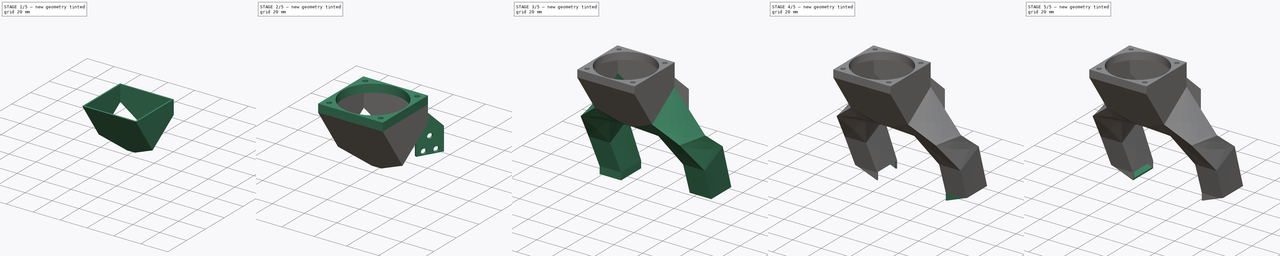
[diagram: build sequence overview — one tinted view per stage of 5, left to right]
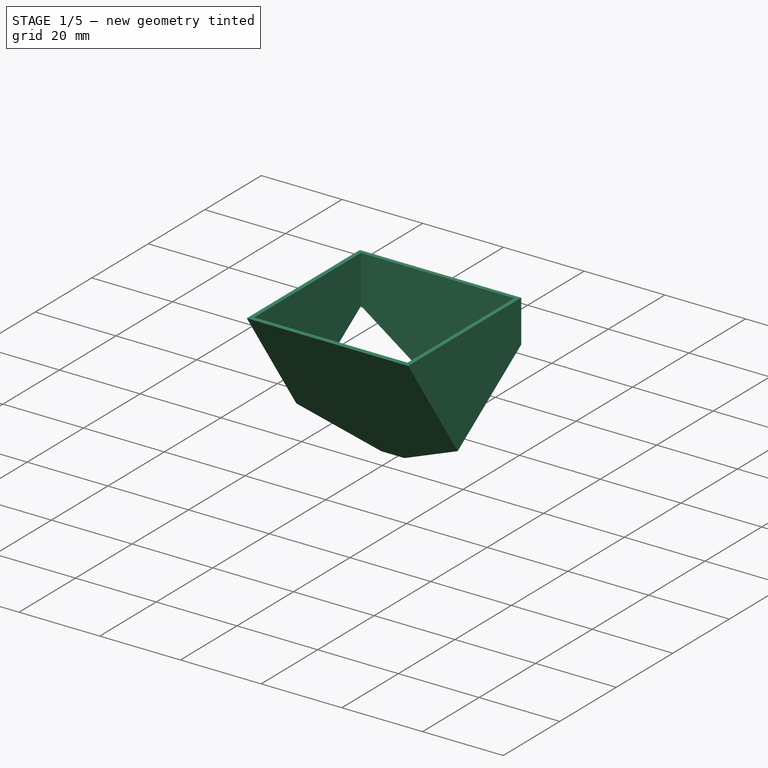
[diagram: stage 1 of 5 — iso view after this stage's code; geometry added in this stage tinted green]
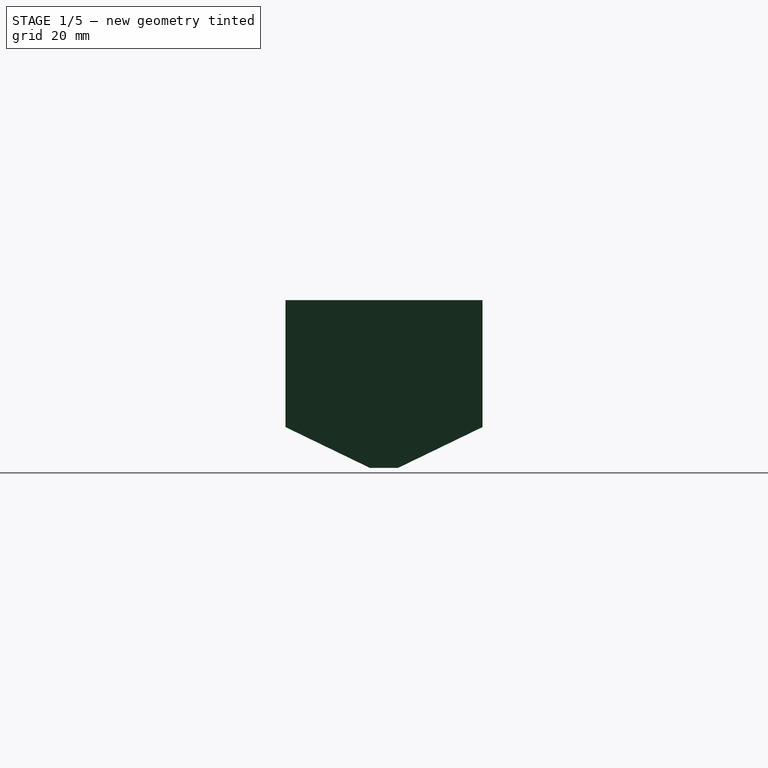
[diagram: stage 1 of 5 — front view after this stage's code; geometry added in this stage tinted green]
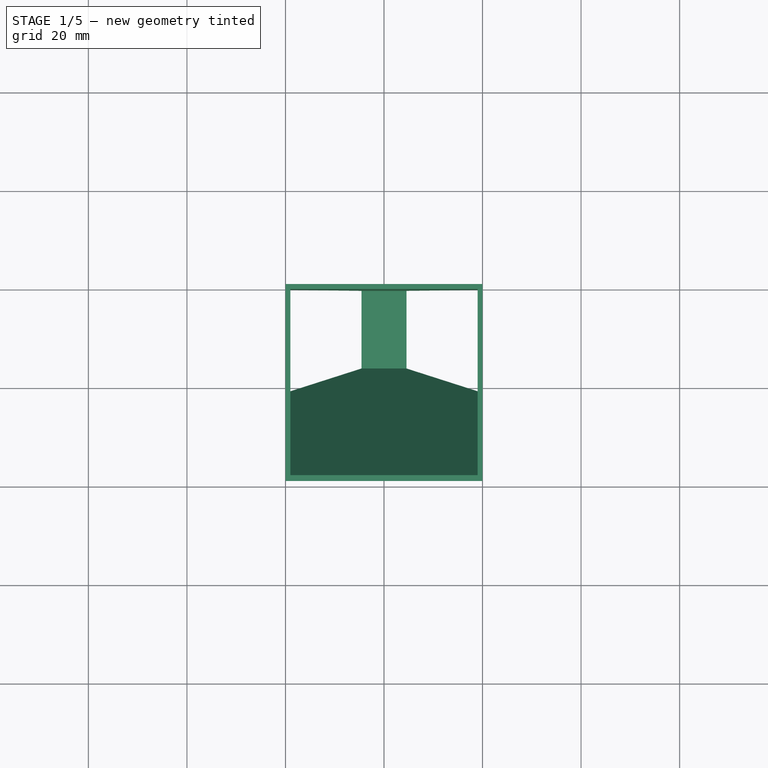
[diagram: stage 1 of 5 — top view after this stage's code; geometry added in this stage tinted green]
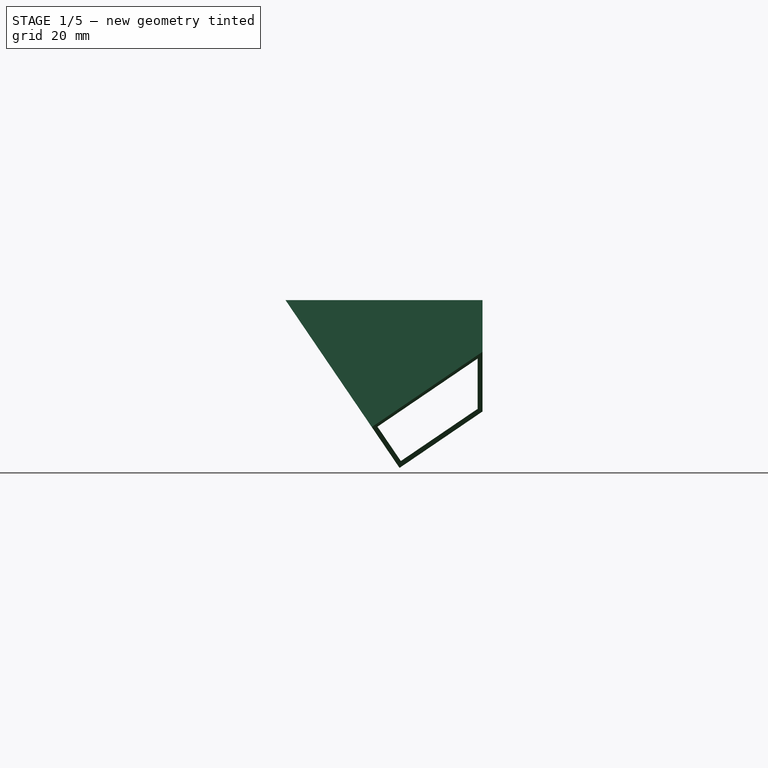
[diagram: stage 1 of 5 — right view after this stage's code; geometry added in this stage tinted green]
FCSTD DOCUMENT  (FreeCAD 0.19R)
Label: hotend-fan
License: All rights reserved
LicenseURL: http://en.wikipedia.org/wiki/All_rights_reserved
objects: Sketcher::SketchObject×21, PartDesign::ShapeBinder×9, PartDesign::Pad×7, PartDesign::Pocket×6, Part::Feature×4, PartDesign::Body×3, PartDesign::Plane×3, PartDesign::AdditiveLoft×3, Part::Thickness×1, PartDesign::FeatureBase×1, PartDesign::Mirrored×1
note: 75 computed .brp shape members not serialized (recipe doc carries the construction recipe); baked Part::Feature solids carry a one-line shape summary decoded from their .brp

FEATURE [Part::Feature] Body001  label="Carriage"
  Placement = pos=(5,40.65,64.65) rot=(0,0.707107,0.707107;3.14159rad)
  shape: bbox 54.15 x 20 x 85.15 mm, 245 faces (baked)
FEATURE [Part::Feature] Body003  label="Hotend001"
  Placement = pos=(0,0,74.4) rot=(0,0,1;0rad)
  shape: bbox 31.18 x 27 x 82.4 mm, 152 faces (baked)
FEATURE [Part::Feature] Body002001  label="Holder001"
  shape: bbox 52 x 36 x 48.65 mm, 41 faces (baked)
FEATURE [Part::Feature] Body004001  label="bltouch001"
  shape: bbox 11.53 x 26 x 42.4 mm, 31 faces (baked)
FEATURE [Sketcher::SketchObject] Sketch
  FullyConstrained = true
  MapMode = 5
  Placement = pos=(0,0,0) rot=(0.57735,0.57735,0.57735;2.0944rad)
  Support = -> [YZ_Plane]
  sketch-geometry (4):
    g0: LineSegment StartX=-19.3853 StartY=86.3403 StartZ=0 EndX=-59.3853 EndY=86.3403 EndZ=0
    g1: LineSegment StartX=-59.3853 StartY=86.3403 StartZ=0 EndX=-36.2307 EndY=52.2822 EndZ=0
    g2: LineSegment StartX=-36.2307 StartY=52.2822 StartZ=0 EndX=-19.3853 EndY=58.241 EndZ=0
    g3: LineSegment StartX=-19.3853 StartY=58.241 StartZ=0 EndX=-19.3853 EndY=86.3403 EndZ=0
  constraints (12):
    c: Coincident(g0,g1)
    c: Coincident(g1,g2)
    c: Coincident(g2,g3)
    c: Coincident(g3,g0)
    c: Vertical(g3)
    c: Distance(g0) = 40
    c: DistanceX(g1) = -36.2307
    c: DistanceY(g1) = 52.2822
    c: DistanceX(g2) = -19.3853
    c: DistanceY(g2) = 58.241
    c: Angle(g1) = -0.973719
    c: Horizontal(g0)
FEATURE [PartDesign::Pad] Pad
  Direction = (1,1,1)
  Length = 40
  Length2 = 100
  Midplane = true
  Placement = pos=(0,0,0) rot=(0.57735,0.57735,0.57735;2.0944rad)
  Profile = -> Sketch
  Type = 0
FEATURE [Sketcher::SketchObject] Sketch001
  ExternalGeometry = -> [Pad]
  FullyConstrained = false
  MapMode = 5
  Placement = pos=(-1e-16,-0.469442,-0.319152) rot=(0.662234,0.662234,-0.350561;2.46724rad)
  Support = -> [Pad]
  sketch-geometry (7):
    g0: LineSegment StartX=-59.0632 StartY=0 StartZ=0 EndX=-59.0632 EndY=20 EndZ=0
    g1: LineSegment StartX=-59.0632 StartY=20 StartZ=0 EndX=-73.6299 EndY=20 EndZ=0
    g2: LineSegment StartX=-59.0632 StartY=0 StartZ=0 EndX=-59.0632 EndY=-20 EndZ=0
    g3: LineSegment StartX=-59.0632 StartY=-20 StartZ=0 EndX=-73.6299 EndY=-20 EndZ=0
    g4: LineSegment StartX=-73.6299 StartY=20 StartZ=0 EndX=-63.6064 EndY=2.86043 EndZ=0
    g5: LineSegment StartX=-63.6064 StartY=2.86043 StartZ=0 EndX=-63.6064 EndY=-2.86043 EndZ=0
    g6: LineSegment StartX=-63.6064 StartY=-2.86043 StartZ=0 EndX=-73.6299 EndY=-20 EndZ=0
  constraints (15):
    c: Coincident(g0,g1)
    c: Coincident(g0,g-4)
    c: PointOnObject(g1,g-3)
    c: Coincident(g2,g-4)
    c: Vertical(g2)
    c: Coincident(g2,g3)
    c: Symmetric(g3,g1,g-1)
    c: Coincident(g1,g4)
    c: Coincident(g4,g5)
    c: Coincident(g5,g6)
    c: Coincident(g6,g3)
    c: PointOnObject(g4,g-6)
    c: Symmetric(g5,g4,g-1)
    c: Coincident(g0,g2)
    c: PointOnObject(g0,g-1)
FEATURE [PartDesign::Pocket] Pocket
  BaseFeature = -> Pad
  Length = 5
  Length2 = 100
  Placement = pos=(0,0,0) rot=(0.57735,0.57735,0.57735;2.0944rad)
  Profile = -> Sketch001
  Type = 1
FEATURE [PartDesign::Body] Body  label="main"
  Group = -> [Sketch,Pad,Sketch001,Pocket]
  Origin = -> Origin
  Tip = -> Pocket
FEATURE [Part::Thickness] Thickness001
  Faces = -> Pocket [Face1,Face8,Face6]
  Intersection = false
  Join = 0
  Mode = 0
  SelfIntersection = false
  Value = -1
FEATURE [PartDesign::FeatureBase] BaseFeature001
  BaseFeature = -> Thickness001
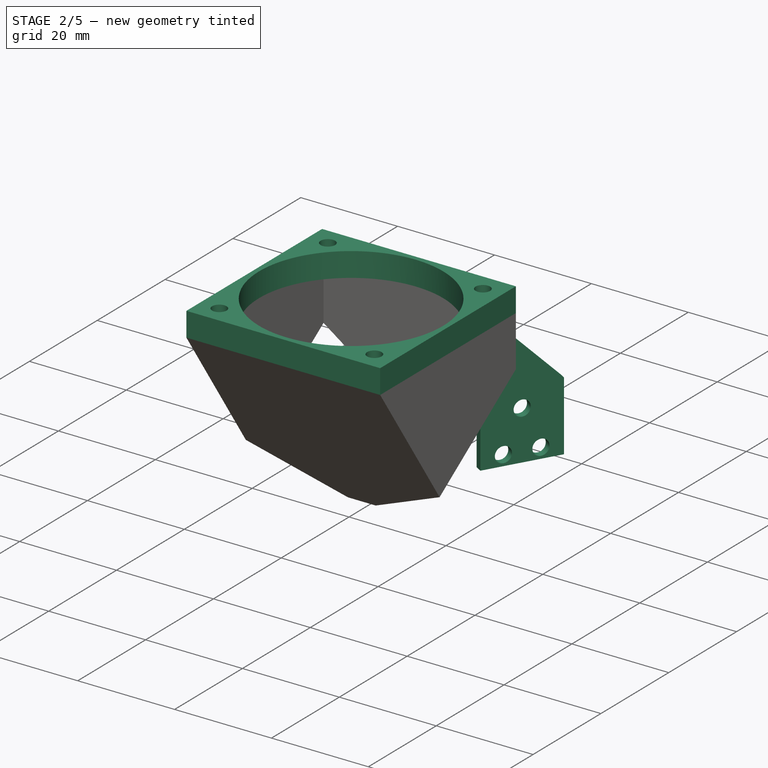
[diagram: stage 2 of 5 — iso view after this stage's code; geometry added in this stage tinted green]
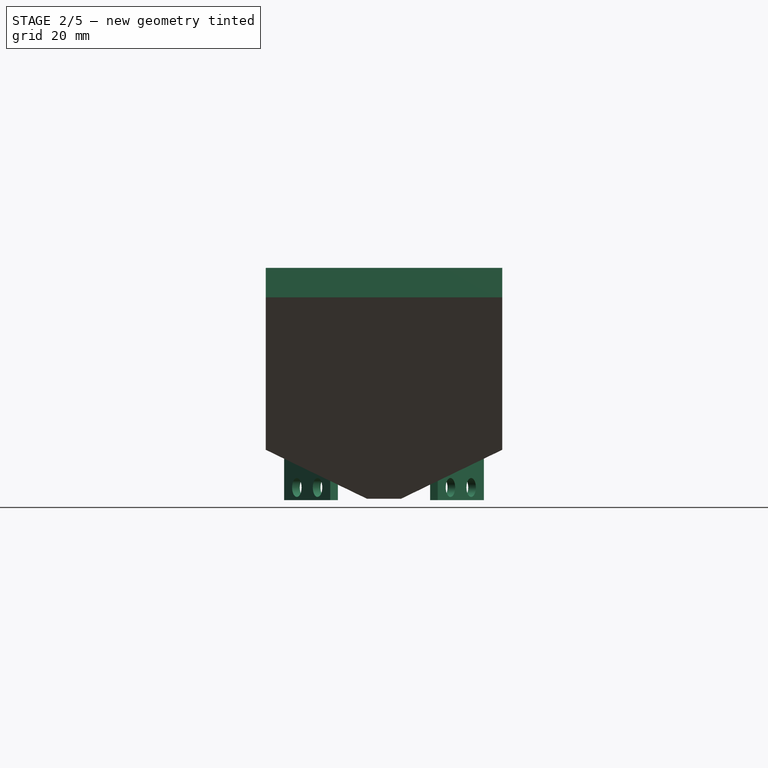
[diagram: stage 2 of 5 — front view after this stage's code; geometry added in this stage tinted green]
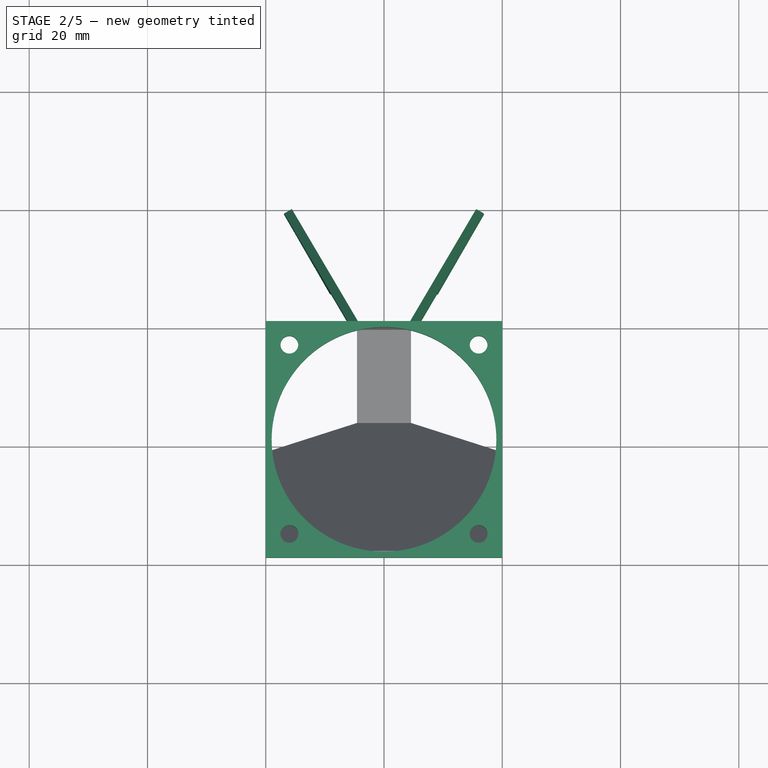
[diagram: stage 2 of 5 — top view after this stage's code; geometry added in this stage tinted green]
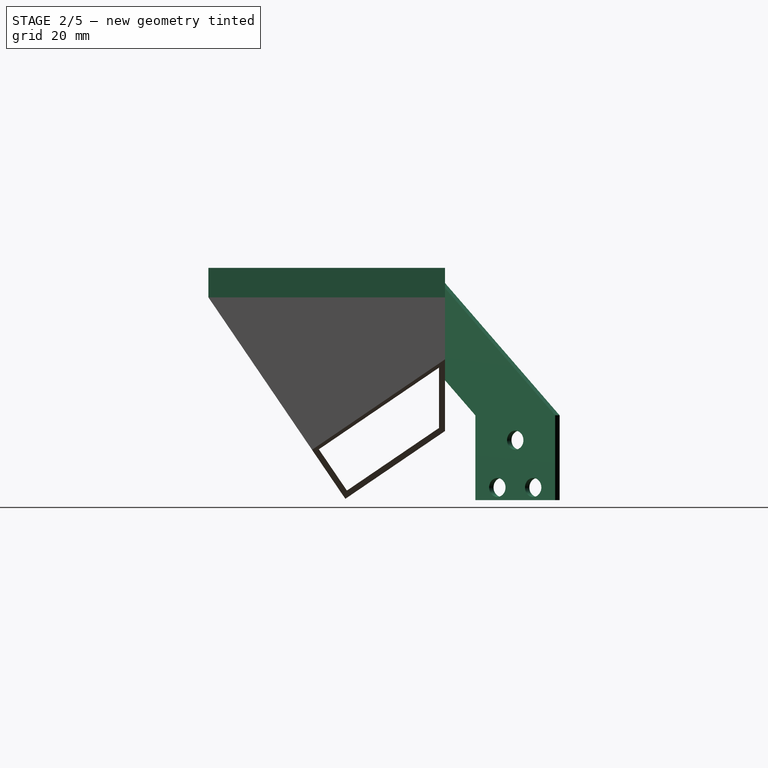
[diagram: stage 2 of 5 — right view after this stage's code; geometry added in this stage tinted green]
FEATURE [PartDesign::Body] Body004004  label="Splitter"
  Group = -> [ShapeBinder009,ShapeBinder010,Sketch034,Sketch036,AdditiveLoft002]
  Origin = -> Origin003
  Tip = -> AdditiveLoft002
FEATURE [PartDesign::Pad] Pad001
  BaseFeature = -> BaseFeature001
  Direction = (1,1,1)
  Length = 5
  Length2 = 100
  Profile = -> Sketch028
  Type = 0
FEATURE [Sketcher::SketchObject] Sketch029
  FullyConstrained = false
  MapMode = 5
  Placement = pos=(-3.25e-14,3.25e-14,91.3403) rot=(0,0,1;0rad)
  Support = -> [Pad001]
  sketch-geometry (9):
    g0: LineSegment StartX=-16 StartY=-23.3853 StartZ=0 EndX=16 EndY=-23.3853 EndZ=0
    g1: LineSegment StartX=16 StartY=-23.3853 StartZ=0 EndX=16 EndY=-55.3853 EndZ=0
    g2: LineSegment StartX=16 StartY=-55.3853 StartZ=0 EndX=-16 EndY=-55.3853 EndZ=0
    g3: LineSegment StartX=-16 StartY=-55.3853 StartZ=0 EndX=-16 EndY=-23.3853 EndZ=0
    g4: LineSegment StartX=6.9e-15 StartY=-39.3853 StartZ=0 EndX=16 EndY=-39.3853 EndZ=0
    g5: Circle CenterX=-16 CenterY=-23.3853 CenterZ=0 NormalX=0 NormalY=0 NormalZ=1 AngleXU=0 Radius=1.5
    g6: Circle CenterX=16 CenterY=-23.3853 CenterZ=0 NormalX=0 NormalY=0 NormalZ=1 AngleXU=0 Radius=1.5
    g7: Circle CenterX=-16 CenterY=-55.3853 CenterZ=0 NormalX=0 NormalY=0 NormalZ=1 AngleXU=0 Radius=1.5
    g8: Circle CenterX=16 CenterY=-55.3853 CenterZ=0 NormalX=0 NormalY=0 NormalZ=1 AngleXU=0 Radius=1.5
  constraints (20):
    c: Coincident(g0,g1)
    c: Coincident(g1,g2)
    c: Coincident(g2,g3)
    c: Coincident(g3,g0)
    c: Horizontal(g2)
    c: Vertical(g1)
    c: Vertical(g3)
    c: Symmetric(g0,g0,g-2)
    c: Equal(g1,g0)
    c: DistanceX(g0,g0) = 32
    c: PointOnObject(g4,g1)
    c: Symmetric(g0,g1,g4)
    c: Coincident(g5,g0)
    c: Coincident(g6,g0)
    c: Coincident(g7,g2)
    c: Coincident(g8,g1)
    c: Radius(g5) = 1.5
    c: Equal(g5,g6)
    c: Equal(g5,g7)
    c: Equal(g5,g8)
FEATURE [PartDesign::Pocket] Pocket001
  BaseFeature = -> Pad001
  Length = 5
  Length2 = 100
  Profile = -> Sketch029
  Type = 0
FEATURE [PartDesign::Pad] Pad002
  BaseFeature = -> Pocket001
  Direction = (1,1,1)
  Length = 1.5
  Length2 = 100
  Profile = -> Sketch026
  Type = 0
FEATURE [PartDesign::Pad] Pad003
  BaseFeature = -> Pad002
  Direction = (1,1,1)
  Length = 1.5
  Length2 = 100
  Profile = -> Sketch027
  Type = 0
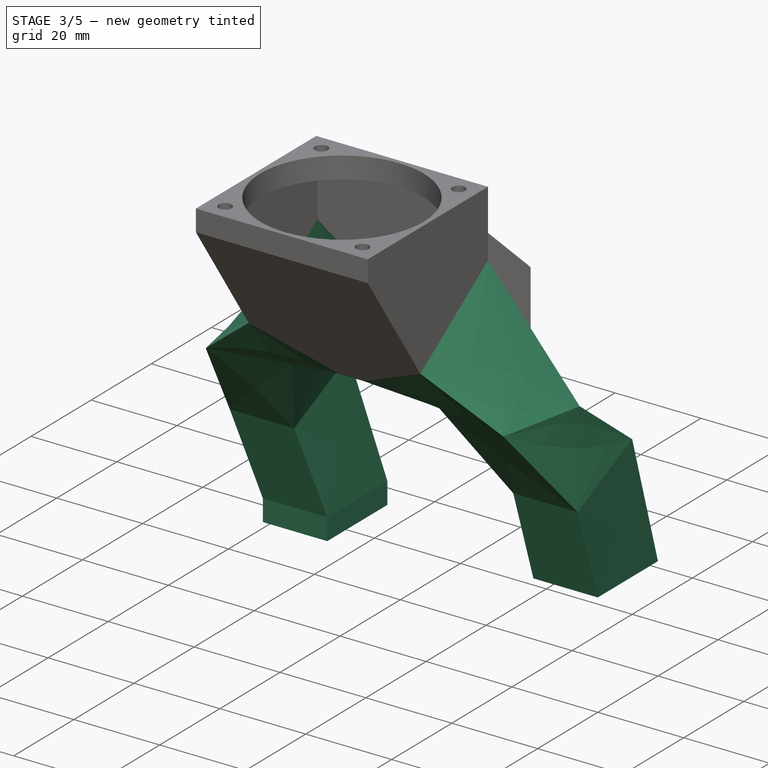
[diagram: stage 3 of 5 — iso view after this stage's code; geometry added in this stage tinted green]
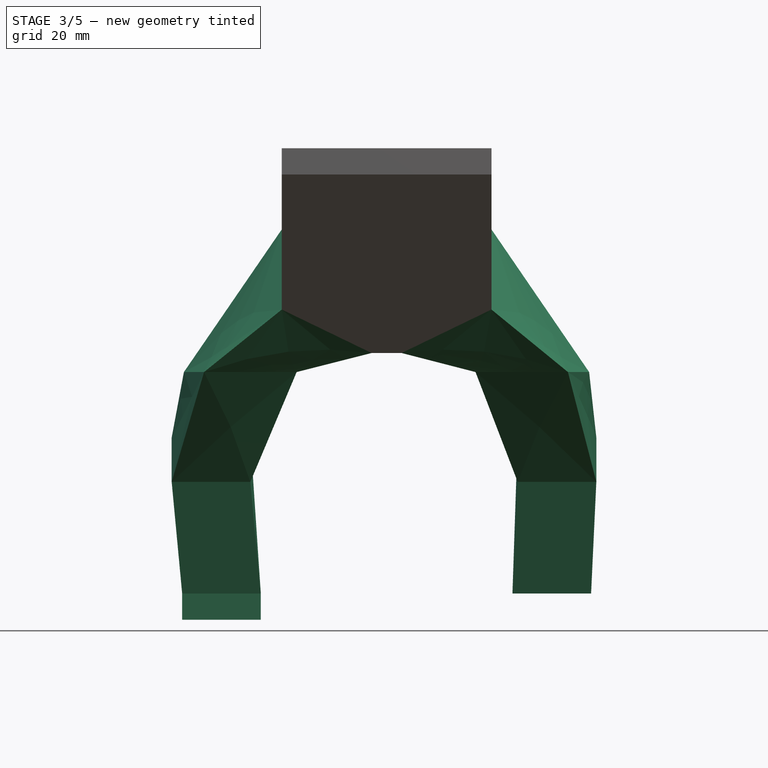
[diagram: stage 3 of 5 — front view after this stage's code; geometry added in this stage tinted green]
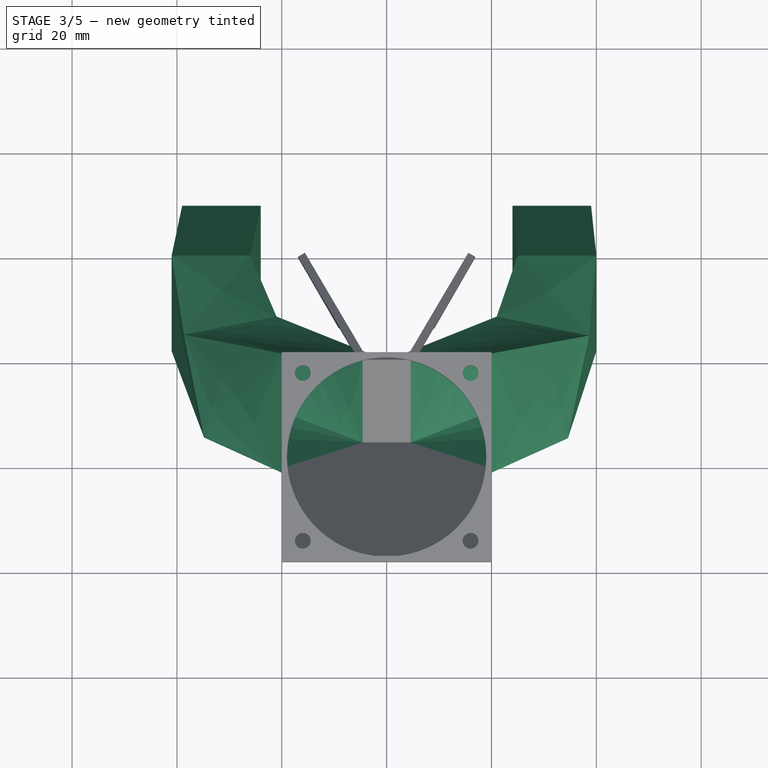
[diagram: stage 3 of 5 — top view after this stage's code; geometry added in this stage tinted green]
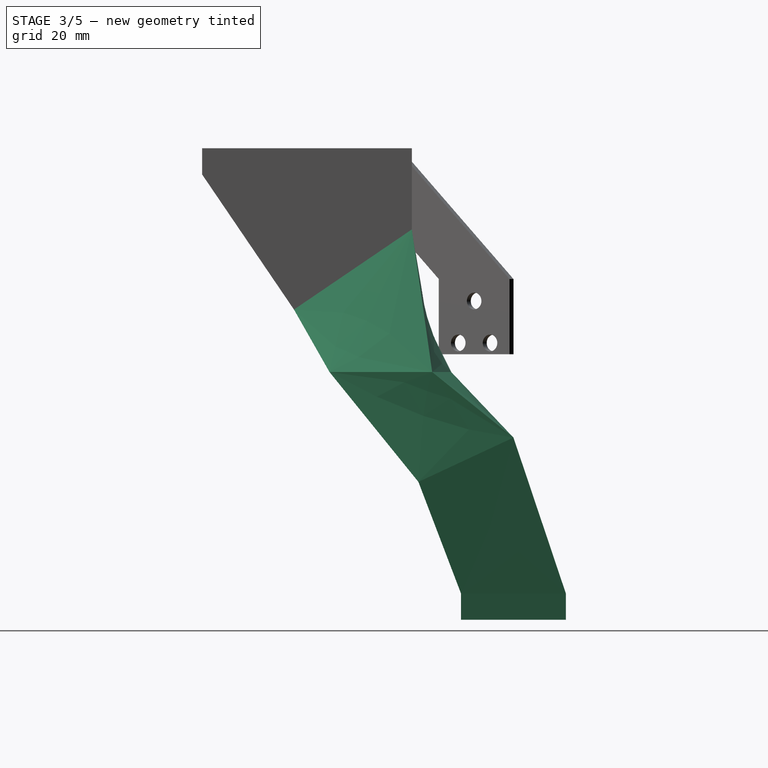
[diagram: stage 3 of 5 — right view after this stage's code; geometry added in this stage tinted green]
FEATURE [Sketcher::SketchObject] Sketch023
  ExternalGeometry = -> [Pad003]
  FullyConstrained = true
  MapMode = 5
  Placement = pos=(26.9892,-25.9467,38.165) rot=(0.962089,0.080218,-0.260672;3.71729rad)
  Support = -> [Pad003]
  sketch-geometry (8):
    g0: LineSegment StartX=-54.4348 StartY=0.567656 StartZ=0 EndX=-34.5794 EndY=0.567656 EndZ=0
    g1: LineSegment StartX=-34.5794 StartY=0.567656 StartZ=0 EndX=-34.5794 EndY=-19.8021 EndZ=0
    g2: LineSegment StartX=-34.5794 StartY=-19.8021 StartZ=0 EndX=-54.4348 EndY=-26.6167 EndZ=0
    g3: LineSegment StartX=-54.4348 StartY=-26.6167 StartZ=0 EndX=-54.4348 EndY=0.567656 EndZ=0
    g4: LineSegment StartX=-53.2763 StartY=-0.432344 StartZ=0 EndX=-36.5603 EndY=-0.432344 EndZ=0
    g5: LineSegment StartX=-36.5603 StartY=-0.432344 StartZ=0 EndX=-36.5603 EndY=-19.2728 EndZ=0
    g6: LineSegment StartX=-36.5603 StartY=-19.2728 StartZ=0 EndX=-53.2763 EndY=-25.0099 EndZ=0
    g7: LineSegment StartX=-53.2763 StartY=-25.0099 StartZ=0 EndX=-53.2763 EndY=-0.432344 EndZ=0
  constraints (16):
    c: Coincident(g0,g1)
    c: Coincident(g1,g2)
    c: Coincident(g2,g3)
    c: Coincident(g3,g0)
    c: Coincident(g4,g5)
    c: Coincident(g5,g6)
    c: Coincident(g6,g7)
    c: Coincident(g7,g4)
    c: Coincident(g0,g-4)
    c: Coincident(g4,g-3)
    c: Coincident(g4,g-3)
    c: Coincident(g0,g-4)
    c: Coincident(g1,g-6)
    c: Coincident(g5,g-5)
    c: Coincident(g-5,g6)
    c: Coincident(g2,g-6)
FEATURE [PartDesign::AdditiveLoft] AdditiveLoft
  BaseFeature = -> Pad003
  Closed = false
  Profile = -> Sketch023
  Ruled = true
  Sections = -> [Sketch018,Sketch021,Sketch019]
FEATURE [PartDesign::AdditiveLoft] AdditiveLoft003
  BaseFeature = -> AdditiveLoft
  Closed = false
  Profile = -> Sketch022
  Ruled = true
  Sections = -> [Sketch020,Sketch016,Sketch017]
FEATURE [PartDesign::ShapeBinder] ShapeBinder011
  Support = -> [AdditiveLoft003]
  TraceSupport = false
FEATURE [PartDesign::Pad] Pad004
  BaseFeature = -> AdditiveLoft003
  Direction = (1,1,1)
  Length = 5
  Length2 = 100
  Profile = -> ShapeBinder011
  Type = 0
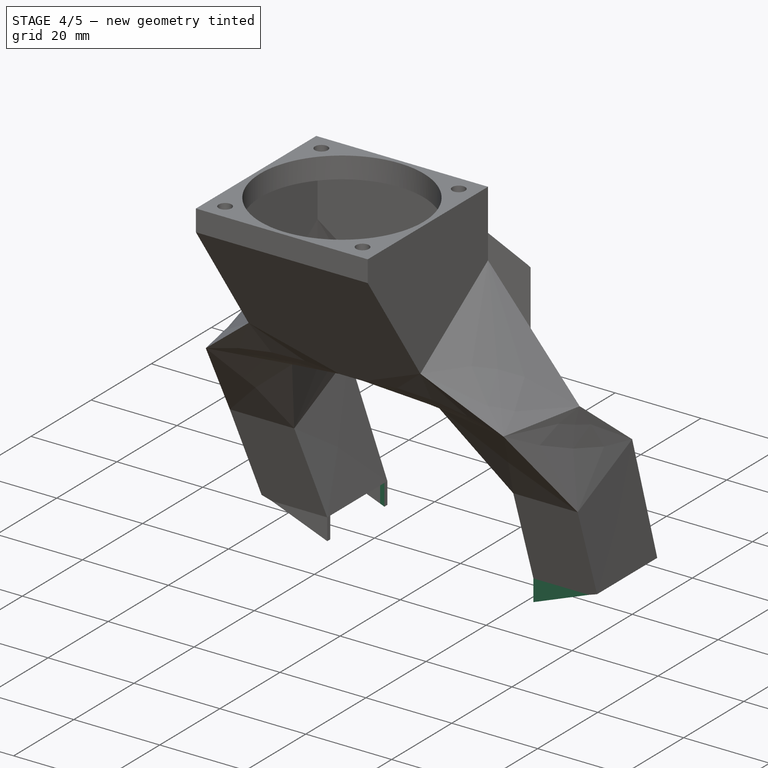
[diagram: stage 4 of 5 — iso view after this stage's code; geometry added in this stage tinted green]
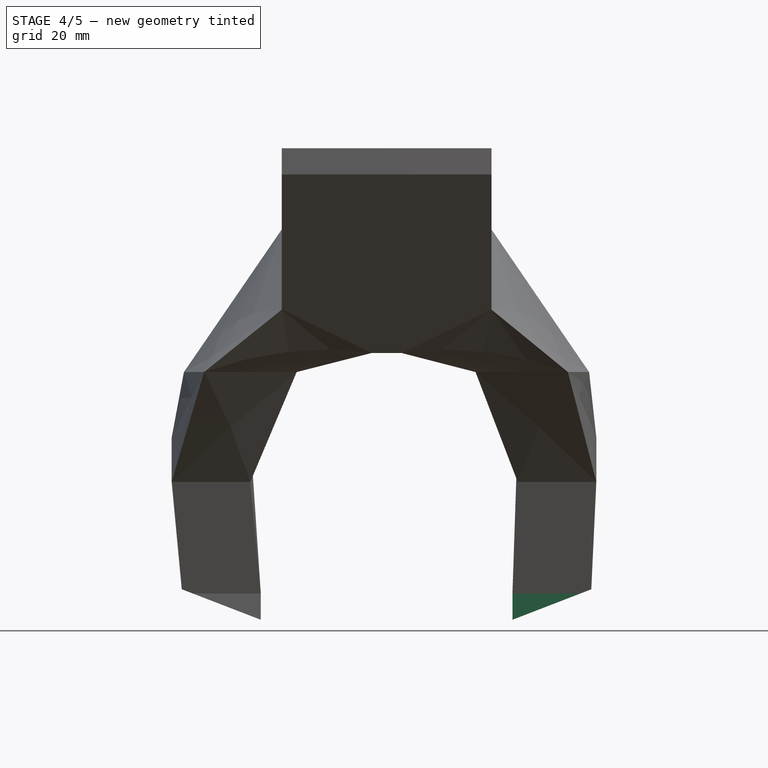
[diagram: stage 4 of 5 — front view after this stage's code; geometry added in this stage tinted green]
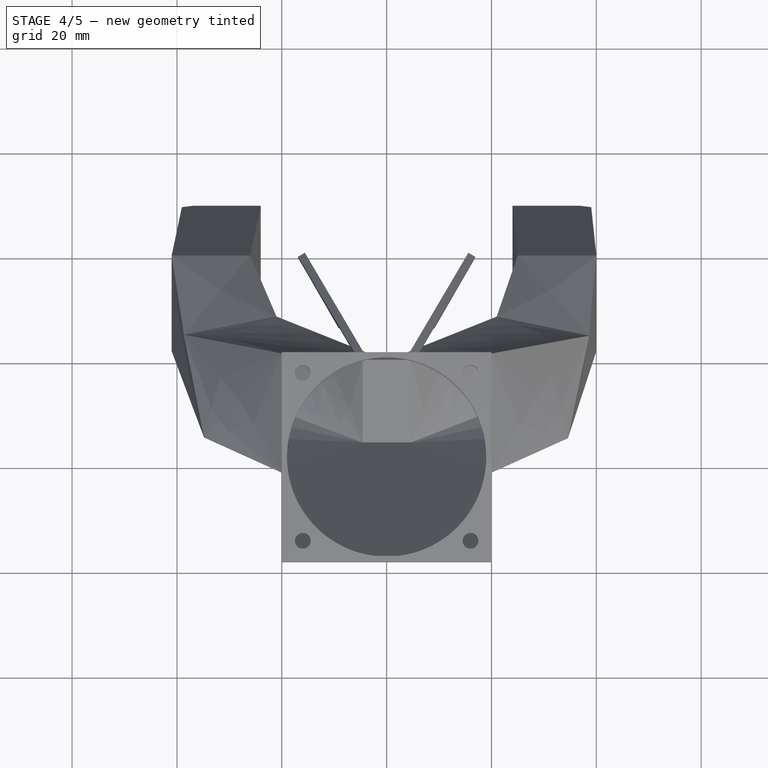
[diagram: stage 4 of 5 — top view after this stage's code; geometry added in this stage tinted green]
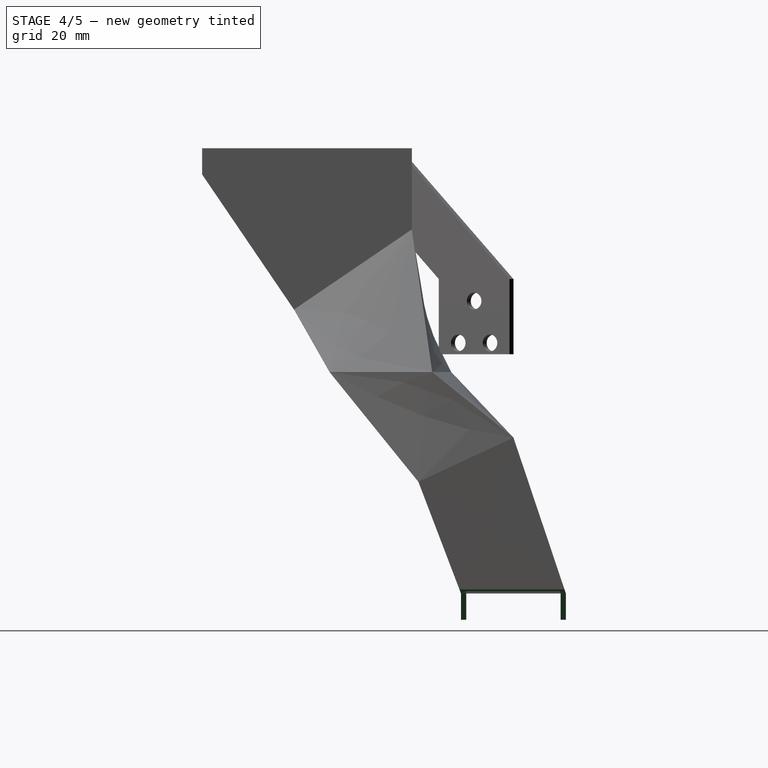
[diagram: stage 4 of 5 — right view after this stage's code; geometry added in this stage tinted green]
FEATURE [PartDesign::ShapeBinder] ShapeBinder012
  Support = -> [Pad004]
  TraceSupport = false
FEATURE [PartDesign::Pad] Pad005
  BaseFeature = -> Pad004
  Direction = (1,1,1)
  Length = 5
  Length2 = 100
  Profile = -> ShapeBinder012
  Type = 0
FEATURE [Sketcher::SketchObject] Sketch037
  ExternalGeometry = -> [Pad005]
  FullyConstrained = true
  MapMode = 5
  Placement = pos=(-25,0,0) rot=(0.57735,-0.57735,-0.57735;2.0944rad)
  Support = -> [Pad005]
  sketch-geometry (4):
    g0: LineSegment StartX=-9 StartY=6.4 StartZ=0 EndX=9 EndY=6.4 EndZ=0
    g1: LineSegment StartX=9 StartY=6.4 StartZ=0 EndX=9 EndY=1.4 EndZ=0
    g2: LineSegment StartX=9 StartY=1.4 StartZ=0 EndX=-9 EndY=1.4 EndZ=0
    g3: LineSegment StartX=-9 StartY=1.4 StartZ=0 EndX=-9 EndY=6.4 EndZ=0
  constraints (10):
    c: Coincident(g0,g1)
    c: Coincident(g1,g2)
    c: Coincident(g2,g3)
    c: Coincident(g3,g0)
    c: Horizontal(g0)
    c: Horizontal(g2)
    c: Vertical(g1)
    c: Vertical(g3)
    c: Coincident(g0,g-3)
    c: Coincident(g1,g-4)
FEATURE [PartDesign::Pocket] Pocket002
  BaseFeature = -> Pad005
  Length = 5
  Length2 = 100
  Profile = -> Sketch037
  Type = 0
FEATURE [Sketcher::SketchObject] Sketch038
  ExternalGeometry = -> [Pocket002]
  FullyConstrained = true
  MapMode = 5
  Placement = pos=(25,0,0) rot=(0.57735,0.57735,0.57735;2.0944rad)
  Support = -> [Pocket002]
  sketch-geometry (4):
    g0: LineSegment StartX=-9 StartY=6.4 StartZ=0 EndX=9 EndY=6.4 EndZ=0
    g1: LineSegment StartX=9 StartY=6.4 StartZ=0 EndX=9 EndY=1.4 EndZ=0
    g2: LineSegment StartX=9 StartY=1.4 StartZ=0 EndX=-9 EndY=1.4 EndZ=0
    g3: LineSegment StartX=-9 StartY=1.4 StartZ=0 EndX=-9 EndY=6.4 EndZ=0
  constraints (10):
    c: Coincident(g0,g1)
    c: Coincident(g1,g2)
    c: Coincident(g2,g3)
    c: Coincident(g3,g0)
    c: Horizontal(g0)
    c: Horizontal(g2)
    c: Vertical(g1)
    c: Vertical(g3)
    c: Coincident(g0,g-3)
    c: Coincident(g1,g-4)
FEATURE [PartDesign::Pocket] Pocket003
  BaseFeature = -> Pocket002
  Length = 5
  Length2 = 100
  Profile = -> Sketch038
  Type = 0
FEATURE [Sketcher::SketchObject] Sketch030
  ExternalGeometry = -> [Pad005]
  FullyConstrained = false
  MapMode = 5
  Placement = pos=(0,-10,0) rot=(1,0,0;1.5708rad)
  Support = -> [Pocket003]
  sketch-geometry (6):
    g0: LineSegment StartX=24 StartY=1.4 StartZ=0 EndX=42.0309 EndY=8.36299 EndZ=0
    g1: LineSegment StartX=42.0309 StartY=8.36299 StartZ=0 EndX=42.0309 EndY=1.4 EndZ=0
    g2: LineSegment StartX=42.0309 StartY=1.4 StartZ=0 EndX=24 EndY=1.4 EndZ=0
    g3: LineSegment StartX=-24 StartY=1.4 StartZ=0 EndX=-42.0309 EndY=8.36299 EndZ=0
    g4: LineSegment StartX=-42.0309 StartY=8.36299 StartZ=0 EndX=-42.0309 EndY=1.4 EndZ=0
    g5: LineSegment StartX=-42.0309 StartY=1.4 StartZ=0 EndX=-24 EndY=1.4 EndZ=0
  constraints (14):
    c: Coincident(g0,g1)
    c: Coincident(g1,g2)
    c: Coincident(g2,g0)
    c: Vertical(g1)
    c: Coincident(g3,g4)
    c: Coincident(g4,g5)
    c: Coincident(g5,g3)
    c: Vertical(g4)
    c: Equal(g1,g4)
    c: Horizontal(g2)
    c: Horizontal(g5)
    c: Equal(g5,g2)
    c: Symmetric(g3,g0,g-2)
    c: Coincident(g0,g-5)
FEATURE [PartDesign::Pocket] Pocket004
  BaseFeature = -> Pocket003
  Length = 20
  Length2 = 20
  Profile = -> Sketch030
  Type = 4
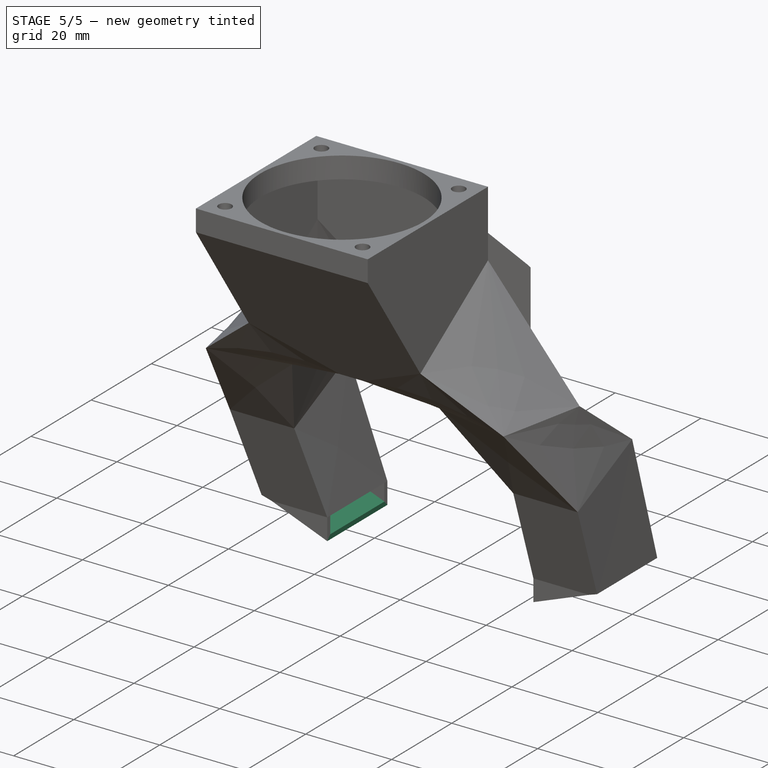
[diagram: stage 5 of 5 — iso view after this stage's code; geometry added in this stage tinted green]
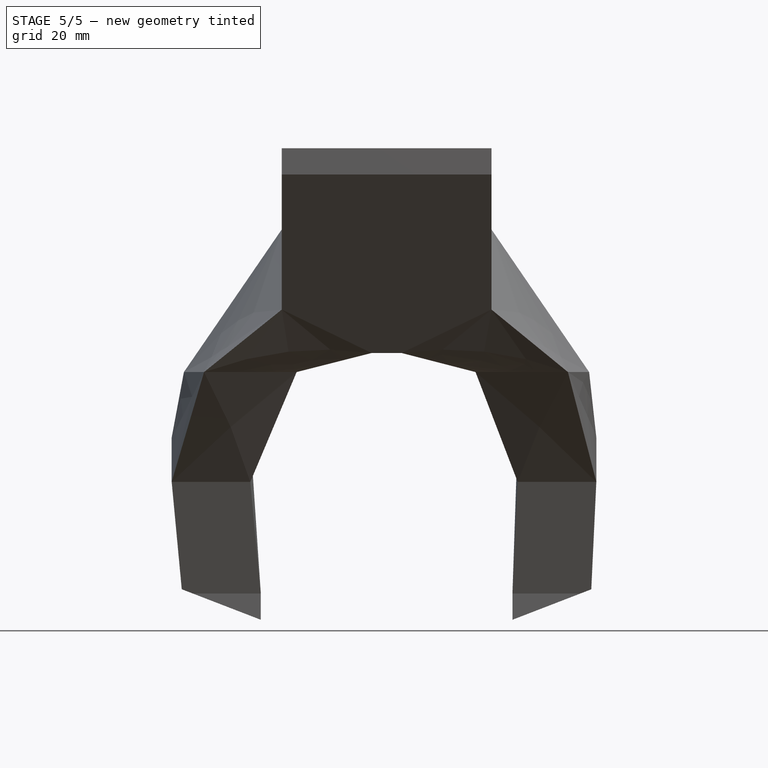
[diagram: stage 5 of 5 — front view after this stage's code; geometry added in this stage tinted green]
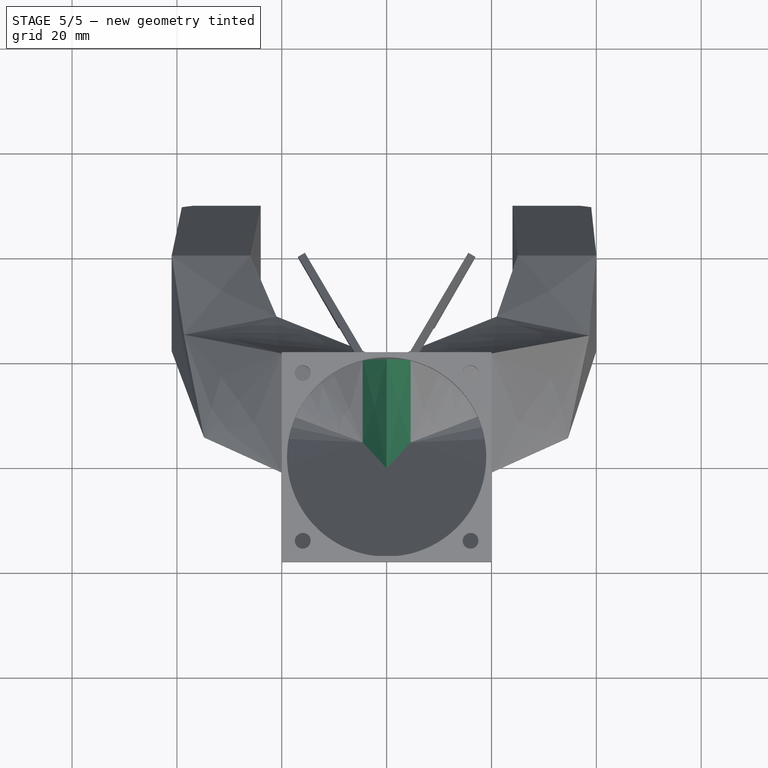
[diagram: stage 5 of 5 — top view after this stage's code; geometry added in this stage tinted green]
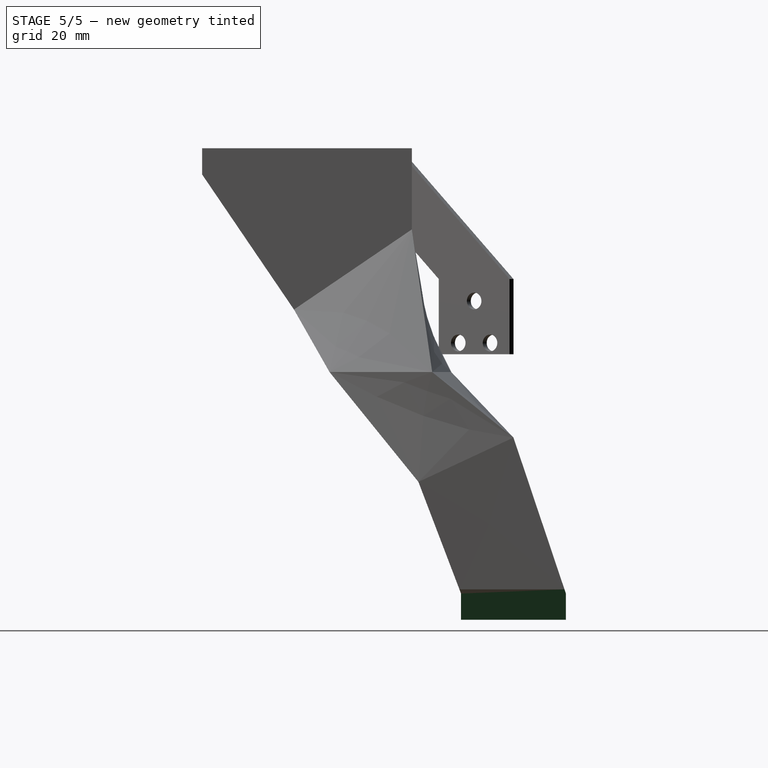
[diagram: stage 5 of 5 — right view after this stage's code; geometry added in this stage tinted green]
FEATURE [PartDesign::ShapeBinder] CopyBody003003
  Placement = pos=(0,0,74.4) rot=(0,0,1;0rad)
  TraceSupport = false
FEATURE [PartDesign::ShapeBinder] CopyBody003004
  Placement = pos=(0,0,74.4) rot=(0,0,1;0rad)
  TraceSupport = false
FEATURE [PartDesign::Plane] DatumPlane003
  Length = 284.982
  MapMode = 5
  Placement = pos=(0,0,6.4) rot=(1,0,0;3.14159rad)
  ResizeMode = 0
  Support = -> [CopyBody003003]
  Width = 284.982
FEATURE [Sketcher::SketchObject] Sketch017
  FullyConstrained = true
  MapMode = 5
  Placement = pos=(0,0,6.4) rot=(1,0,0;3.14159rad)
  Support = -> [DatumPlane003]
  sketch-geometry (10):
    g0: LineSegment StartX=24 StartY=10 StartZ=0 EndX=39 EndY=10 EndZ=0
    g1: LineSegment StartX=39 StartY=10 StartZ=0 EndX=39 EndY=-10 EndZ=0
    g2: LineSegment StartX=39 StartY=-10 StartZ=0 EndX=24 EndY=-10 EndZ=0
    g3: LineSegment StartX=24 StartY=-10 StartZ=0 EndX=24 EndY=10 EndZ=0
    g4: LineSegment StartX=25 StartY=9 StartZ=0 EndX=38 EndY=9 EndZ=0
    g5: LineSegment StartX=38 StartY=9 StartZ=0 EndX=38 EndY=-9 EndZ=0
    g6: LineSegment StartX=38 StartY=-9 StartZ=0 EndX=25 EndY=-9 EndZ=0
    g7: LineSegment StartX=25 StartY=-9 StartZ=0 EndX=25 EndY=9 EndZ=0
    g8: LineSegment StartX=39 StartY=10 StartZ=0 EndX=38 EndY=9 EndZ=0
    g9: LineSegment StartX=25 StartY=-9 StartZ=0 EndX=24 EndY=-10 EndZ=0
  constraints (27):
    c: Coincident(g0,g1)
    c: Coincident(g1,g2)
    c: Coincident(g2,g3)
    c: Coincident(g3,g0)
    c: Horizontal(g0)
    c: Horizontal(g2)
    c: Vertical(g3)
    c: DistanceX(g2,g2) = 15
    c: DistanceY(g3,g3) = 20
    c: Symmetric(g0,g1,g-1)
    c: Coincident(g4,g5)
    c: Coincident(g5,g6)
    c: Coincident(g6,g7)
    c: Coincident(g7,g4)
    c: Horizontal(g4)
    c: Horizontal(g6)
    c: Vertical(g5)
    c: Vertical(g7)
    c: Distance(g4,g0) = 1
    c: Distance(g4,g1) = 1
    c: Coincident(g8,g0)
    c: Coincident(g8,g4)
    c: Coincident(g9,g6)
    c: Coincident(g9,g2)
    c: Equal(g9,g8)
    c: Parallel(g9,g8)
    c: DistanceX(g0) = 24
FEATURE [PartDesign::ShapeBinder] CopyBody003005
  Placement = pos=(0,0,74.4) rot=(0,0,1;0rad)
  TraceSupport = false
FEATURE [PartDesign::Plane] DatumPlane004
  Length = 284.982
  MapMode = 5
  Placement = pos=(0,0,48.65) rot=(0,0,1;0rad)
  ResizeMode = 0
  Support = -> [CopyBody003005]
  Width = 284.982
FEATURE [Sketcher::SketchObject] Sketch018
  FullyConstrained = false
  MapMode = 5
  Placement = pos=(0,0,48.65) rot=(0,0,1;0rad)
  Support = -> [DatumPlane004]
  sketch-geometry (10):
    g0: LineSegment StartX=-38.6652 StartY=-15.3166 StartZ=0 EndX=-21 EndY=-11.8608 EndZ=0
    g1: LineSegment StartX=-21 StartY=-11.8608 StartZ=0 EndX=-17.1603 EndY=-31.4888 EndZ=0
    g2: LineSegment StartX=-17.1603 StartY=-31.4888 StartZ=0 EndX=-34.8255 EndY=-34.9445 EndZ=0
    g3: LineSegment StartX=-34.8255 StartY=-34.9445 StartZ=0 EndX=-38.6652 EndY=-15.3166 EndZ=0
    g4: LineSegment StartX=-37.4918 StartY=-16.106 StartZ=0 EndX=-21.7894 EndY=-13.0342 EndZ=0
    g5: LineSegment StartX=-21.7894 StartY=-13.0342 StartZ=0 EndX=-18.3337 EndY=-30.6994 EndZ=0
    g6: LineSegment StartX=-18.3337 StartY=-30.6994 StartZ=0 EndX=-34.036 EndY=-33.7711 EndZ=0
    g7: LineSegment StartX=-34.036 StartY=-33.7711 StartZ=0 EndX=-37.4918 EndY=-16.106 EndZ=0
    g8: LineSegment StartX=-21 StartY=-11.8608 StartZ=0 EndX=-21.7894 EndY=-13.0342 EndZ=0
    g9: LineSegment StartX=-34.8255 StartY=-34.9445 StartZ=0 EndX=-34.036 EndY=-33.7711 EndZ=0
  constraints (26):
    c: Coincident(g0,g1)
    c: Coincident(g1,g2)
    c: Coincident(g2,g3)
    c: Coincident(g3,g0)
    c: Coincident(g4,g5)
    c: Coincident(g5,g6)
    c: Coincident(g6,g7)
    c: Coincident(g7,g4)
    c: Distance(g4,g1) = 1
    c: Distance(g4,g0) = 1
    c: Coincident(g8,g0)
    c: Coincident(g8,g4)
    c: Coincident(g9,g2)
    c: Coincident(g9,g6)
    c: Equal(g9,g8)
    c: Parallel(g8,g9)
    c: DistanceX(g0) = -21
    c: Parallel(g4,g6)
    c: Parallel(g6,g0)
    c: Parallel(g0,g2)
    c: Parallel(g3,g7)
    c: Parallel(g7,g5)
    c: Parallel(g5,g1)
    c: Distance(g3) = 20
    c: Distance(g0) = 18
    c: Perpendicular(g6,g7)
FEATURE [Sketcher::SketchObject] Sketch019
  FullyConstrained = true
  MapMode = 5
  Placement = pos=(0,0,6.4) rot=(1,0,0;3.14159rad)
  Support = -> [DatumPlane003]
  sketch-geometry (10):
    g0: LineSegment StartX=-39 StartY=10 StartZ=0 EndX=-24 EndY=10 EndZ=0
    g1: LineSegment StartX=-24 StartY=10 StartZ=0 EndX=-24 EndY=-10 EndZ=0
    g2: LineSegment StartX=-24 StartY=-10 StartZ=0 EndX=-39 EndY=-10 EndZ=0
    g3: LineSegment StartX=-39 StartY=-10 StartZ=0 EndX=-39 EndY=10 EndZ=0
    g4: LineSegment StartX=-38 StartY=9 StartZ=0 EndX=-25 EndY=9 EndZ=0
    g5: LineSegment StartX=-25 StartY=9 StartZ=0 EndX=-25 EndY=-9 EndZ=0
    g6: LineSegment StartX=-25 StartY=-9 StartZ=0 EndX=-38 EndY=-9 EndZ=0
    g7: LineSegment StartX=-38 StartY=-9 StartZ=0 EndX=-38 EndY=9 EndZ=0
    g8: LineSegment StartX=-25 StartY=9 StartZ=0 EndX=-24 EndY=10 EndZ=0
    g9: LineSegment StartX=-39 StartY=-10 StartZ=0 EndX=-38 EndY=-9 EndZ=0
  constraints (27):
    c: Coincident(g0,g1)
    c: Coincident(g1,g2)
    c: Coincident(g2,g3)
    c: Coincident(g3,g0)
    c: Horizontal(g0)
    c: Horizontal(g2)
    c: Vertical(g3)
    c: DistanceX(g0,g0) = 15
    c: DistanceY(g1,g1) = 20
    c: Symmetric(g0,g1,g-1)
    c: Coincident(g4,g5)
    c: Coincident(g5,g6)
    c: Coincident(g6,g7)
    c: Coincident(g7,g4)
    c: Horizontal(g4)
    c: Horizontal(g6)
    c: Vertical(g5)
    c: Vertical(g7)
    c: Distance(g4,g1) = 1
    c: Distance(g4,g0) = 1
    c: Coincident(g8,g4)
    c: Coincident(g8,g0)
    c: Coincident(g9,g2)
    c: Coincident(g9,g6)
    c: Equal(g8,g9)
    c: Parallel(g9,g8)
    c: DistanceX(g1) = -24
FEATURE [Sketcher::SketchObject] Sketch020
  FullyConstrained = false
  MapMode = 5
  Placement = pos=(0,0,48.65) rot=(0,0,1;0rad)
  Support = -> [DatumPlane004]
  sketch-geometry (10):
    g0: LineSegment StartX=21 StartY=-11.8608 StartZ=0 EndX=38.6285 EndY=-15.4991 EndZ=0
    g1: LineSegment StartX=38.6285 StartY=-15.4991 StartZ=0 EndX=34.586 EndY=-35.0863 EndZ=0
    g2: LineSegment StartX=34.586 StartY=-35.0863 StartZ=0 EndX=16.9575 EndY=-31.448 EndZ=0
    g3: LineSegment StartX=16.9575 StartY=-31.448 StartZ=0 EndX=21 EndY=-11.8608 EndZ=0
    g4: LineSegment StartX=21.7772 StartY=-13.0423 StartZ=0 EndX=37.447 EndY=-16.2763 EndZ=0
    g5: LineSegment StartX=37.447 StartY=-16.2763 StartZ=0 EndX=33.8087 EndY=-33.9048 EndZ=0
    g6: LineSegment StartX=33.8087 StartY=-33.9048 StartZ=0 EndX=18.139 EndY=-30.6708 EndZ=0
    g7: LineSegment StartX=18.139 StartY=-30.6708 StartZ=0 EndX=21.7772 EndY=-13.0423 EndZ=0
    g8: LineSegment StartX=37.447 StartY=-16.2763 StartZ=0 EndX=38.6285 EndY=-15.4991 EndZ=0
    g9: LineSegment StartX=18.139 StartY=-30.6708 StartZ=0 EndX=16.9575 EndY=-31.448 EndZ=0
  constraints (27):
    c: Coincident(g0,g1)
    c: Coincident(g1,g2)
    c: Coincident(g2,g3)
    c: Coincident(g3,g0)
    c: Coincident(g4,g5)
    c: Coincident(g5,g6)
    c: Coincident(g6,g7)
    c: Coincident(g7,g4)
    c: DistanceY(g0) = -11.8608
    c: Distance(g4,g1) = 1
    c: Coincident(g8,g4)
    c: Coincident(g8,g0)
    c: Coincident(g9,g6)
    c: Coincident(g9,g2)
    c: Distance(g4,g0) = 1
    c: Equal(g9,g8)
    c: Parallel(g8,g9)
    c: DistanceX(g0) = 21
    c: Parallel(g0,g4)
    c: Parallel(g4,g6)
    c: Parallel(g6,g2)
    c: Distance(g1) = 20
    c: Distance(g0) = 18
    c: Parallel(g3,g7)
    c: Parallel(g7,g5)
    c: Parallel(g5,g1)
    c: Perpendicular(g6,g5)
FEATURE [PartDesign::Plane] DatumPlane005
  AttachmentOffset = pos=(-4,0,0) rot=(1,0,0;0.436332rad)
  Length = 292.239
  MapMode = 5
  Placement = pos=(-4,0,36.15) rot=(1,0,0;0.436332rad)
  ResizeMode = 0
  Support = -> [CopyBody003004]
  Width = 370.354
FEATURE [Sketcher::SketchObject] Sketch016
  FullyConstrained = true
  MapMode = 5
  Placement = pos=(-4,0,36.15) rot=(1,0,0;0.436332rad)
  Support = -> [DatumPlane005]
  sketch-geometry (10):
    g0: LineSegment StartX=29 StartY=0 StartZ=0 EndX=44 EndY=0 EndZ=0
    g1: LineSegment StartX=44 StartY=0 StartZ=0 EndX=44 EndY=-20 EndZ=0
    g2: LineSegment StartX=44 StartY=-20 StartZ=0 EndX=29 EndY=-20 EndZ=0
    g3: LineSegment StartX=29 StartY=-20 StartZ=0 EndX=29 EndY=0 EndZ=0
    g4: LineSegment StartX=30 StartY=-1 StartZ=0 EndX=43 EndY=-1 EndZ=0
    g5: LineSegment StartX=43 StartY=-1 StartZ=0 EndX=43 EndY=-19 EndZ=0
    g6: LineSegment StartX=43 StartY=-19 StartZ=0 EndX=30 EndY=-19 EndZ=0
    g7: LineSegment StartX=30 StartY=-19 StartZ=0 EndX=30 EndY=-1 EndZ=0
    g8: LineSegment StartX=44 StartY=0 StartZ=0 EndX=43 EndY=-1 EndZ=0
    g9: LineSegment StartX=30 StartY=-19 StartZ=0 EndX=29 EndY=-20 EndZ=0
  constraints (28):
    c: Coincident(g0,g1)
    c: Coincident(g1,g2)
    c: Coincident(g2,g3)
    c: Coincident(g3,g0)
    c: Horizontal(g0)
    c: Horizontal(g2)
    c: Vertical(g1)
    c: Vertical(g3)
    c: DistanceX(g0,g0) = 15
    c: DistanceY(g1,g1) = 20
    c: PointOnObject(g0,g-1)
    c: Coincident(g4,g5)
    c: Coincident(g5,g6)
    c: Coincident(g6,g7)
    c: Coincident(g7,g4)
    c: Horizontal(g4)
    c: Horizontal(g6)
    c: Vertical(g5)
    c: Vertical(g7)
    c: Distance(g4,g1) = 1
    c: Distance(g4,g0) = 1
    c: Coincident(g8,g0)
    c: Coincident(g8,g4)
    c: Coincident(g9,g6)
    c: Coincident(g9,g2)
    c: Equal(g9,g8)
    c: Parallel(g9,g8)
    c: DistanceX(g0) = 29
FEATURE [Sketcher::SketchObject] Sketch021
  FullyConstrained = true
  MapMode = 5
  Placement = pos=(-4,0,36.15) rot=(1,0,0;0.436332rad)
  Support = -> [DatumPlane005]
  sketch-geometry (10):
    g0: LineSegment StartX=-37 StartY=0 StartZ=0 EndX=-22 EndY=0 EndZ=0
    g1: LineSegment StartX=-22 StartY=0 StartZ=0 EndX=-22 EndY=-20 EndZ=0
    g2: LineSegment StartX=-22 StartY=-20 StartZ=0 EndX=-37 EndY=-20 EndZ=0
    g3: LineSegment StartX=-37 StartY=-20 StartZ=0 EndX=-37 EndY=0 EndZ=0
    g4: LineSegment StartX=-36 StartY=-1 StartZ=0 EndX=-23 EndY=-1 EndZ=0
    g5: LineSegment StartX=-23 StartY=-1 StartZ=0 EndX=-23 EndY=-19 EndZ=0
    g6: LineSegment StartX=-23 StartY=-19 StartZ=0 EndX=-36 EndY=-19 EndZ=0
    g7: LineSegment StartX=-36 StartY=-19 StartZ=0 EndX=-36 EndY=-1 EndZ=0
    g8: LineSegment StartX=-23 StartY=-1 StartZ=0 EndX=-22 EndY=0 EndZ=0
    g9: LineSegment StartX=-37 StartY=-20 StartZ=0 EndX=-36 EndY=-19 EndZ=0
  constraints (28):
    c: Coincident(g0,g1)
    c: Coincident(g1,g2)
    c: Coincident(g2,g3)
    c: Coincident(g3,g0)
    c: Horizontal(g0)
    c: Horizontal(g2)
    c: Vertical(g1)
    c: Vertical(g3)
    c: PointOnObject(g0,g-1)
    c: DistanceY(g1,g1) = 20
    c: DistanceX(g0,g0) = 15
    c: Coincident(g4,g5)
    c: Coincident(g5,g6)
    c: Coincident(g6,g7)
    c: Coincident(g7,g4)
    c: Horizontal(g4)
    c: Horizontal(g6)
    c: Vertical(g5)
    c: Vertical(g7)
    c: Coincident(g8,g4)
    c: Coincident(g8,g0)
    c: Coincident(g9,g2)
    c: Coincident(g9,g6)
    c: Equal(g9,g8)
    c: Parallel(g8,g9)
    c: Distance(g4,g1) = 1
    c: Distance(g4,g0) = 1
    c: DistanceX(g0) = -22
FEATURE [Sketcher::SketchObject] Sketch022
  ExternalGeometry = -> [BaseFeature001]
  FullyConstrained = true
  MapMode = 5
  Placement = pos=(-26.9892,-25.9467,38.165) rot=(0.962089,-0.080218,0.260672;3.71729rad)
  Support = -> [BaseFeature001]
  sketch-geometry (8):
    g0: LineSegment StartX=34.5794 StartY=0.567656 StartZ=0 EndX=34.5794 EndY=-19.8021 EndZ=0
    g1: LineSegment StartX=34.5794 StartY=-19.8021 StartZ=0 EndX=54.4348 EndY=-26.6167 EndZ=0
    g2: LineSegment StartX=54.4348 StartY=-26.6167 StartZ=0 EndX=54.4348 EndY=0.567656 EndZ=0
    g3: LineSegment StartX=54.4348 StartY=0.567656 StartZ=0 EndX=34.5794 EndY=0.567656 EndZ=0
    g4: LineSegment StartX=36.5603 StartY=-0.432344 StartZ=0 EndX=36.5603 EndY=-19.2728 EndZ=0
    g5: LineSegment StartX=36.5603 StartY=-19.2728 StartZ=0 EndX=53.2763 EndY=-25.0099 EndZ=0
    g6: LineSegment StartX=53.2763 StartY=-25.0099 StartZ=0 EndX=53.2763 EndY=-0.432344 EndZ=0
    g7: LineSegment StartX=53.2763 StartY=-0.432344 StartZ=0 EndX=36.5603 EndY=-0.432344 EndZ=0
  constraints (16):
    c: Coincident(g-4,g0)
    c: Coincident(g0,g-9)
    c: Coincident(g0,g1)
    c: Coincident(g1,g-9)
    c: Coincident(g1,g2)
    c: Coincident(g2,g-3)
    c: Coincident(g2,g3)
    c: Coincident(g3,g0)
    c: Coincident(g-6,g4)
    c: Coincident(g4,g-8)
    c: Coincident(g4,g5)
    c: Coincident(g5,g-8)
    c: Coincident(g5,g6)
    c: Coincident(g6,g-7)
    c: Coincident(g6,g7)
    c: Coincident(g7,g4)
FEATURE [PartDesign::ShapeBinder] ShapeBinder
  Placement = pos=(0,0,74.4) rot=(0,0,1;0rad)
  Support = -> [Body003]
  TraceSupport = false
FEATURE [PartDesign::ShapeBinder] ShapeBinder006
  Placement = pos=(0,0,74.4) rot=(0,0,1;0rad)
  Support = -> [Body003]
  TraceSupport = false
FEATURE [Sketcher::SketchObject] Sketch026
  ExternalGeometry = -> [ShapeBinder006]
  FullyConstrained = false
  MapMode = 5
  Placement = pos=(-11.6913,-6.75,74.4) rot=(0.774597,-0.447214,-0.447214;1.82348rad)
  Support = -> [ShapeBinder006]
  sketch-geometry (9):
    g0: LineSegment StartX=-7.79423 StartY=-8 StartZ=0 EndX=14.5942 EndY=14.3885 EndZ=0
    g1: LineSegment StartX=14.5942 StartY=14.3885 StartZ=0 EndX=14.5942 EndY=-1.2 EndZ=0
    g2: LineSegment StartX=14.5942 StartY=-1.2 StartZ=0 EndX=7.79423 EndY=-8 EndZ=0
    g3: LineSegment StartX=7.79423 StartY=-8 StartZ=0 EndX=7.79423 EndY=-22.35 EndZ=0
    g4: LineSegment StartX=7.79423 StartY=-22.35 StartZ=0 EndX=-7.79423 EndY=-22.35 EndZ=0
    g5: LineSegment StartX=-7.79423 StartY=-22.35 StartZ=0 EndX=-7.79423 EndY=-8 EndZ=0
    g6: Circle CenterX=-2.4e-15 CenterY=-12.2 CenterZ=0 NormalX=0 NormalY=0 NormalZ=1 AngleXU=0 Radius=1.6
    g7: Circle CenterX=-3.5 CenterY=-20.2 CenterZ=0 NormalX=0 NormalY=0 NormalZ=1 AngleXU=0 Radius=1.6
    g8: Circle CenterX=3.5 CenterY=-20.2 CenterZ=0 NormalX=0 NormalY=0 NormalZ=1 AngleXU=0 Radius=1.6
  constraints (22):
    c: Coincident(g-6,g0)
    c: Coincident(g0,g1)
    c: Vertical(g1)
    c: Coincident(g1,g2)
    c: Coincident(g2,g-7)
    c: Coincident(g2,g3)
    c: PointOnObject(g3,g-7)
    c: Coincident(g3,g4)
    c: PointOnObject(g4,g-5)
    c: Horizontal(g4)
    c: Coincident(g4,g5)
    c: Coincident(g5,g0)
    c: Parallel(g2,g0)
    c: Distance(g-7,g4) = 2
    c: Coincident(g6,g-8)
    c: Coincident(g7,g-9)
    c: Coincident(g8,g-10)
    c: Equal(g6,g7)
    c: Equal(g7,g8)
    c: Equal(g8,g-8)
    c: Distance(g2,g1) = 6.8
    c: Angle(g-6,g0) = 0.785398
FEATURE [Sketcher::SketchObject] Sketch027
  ExternalGeometry = -> [ShapeBinder]
  FullyConstrained = true
  MapMode = 5
  Placement = pos=(11.6913,-6.75,74.4) rot=(0.774597,0.447214,0.447214;1.82348rad)
  Support = -> [ShapeBinder]
  sketch-geometry (9):
    g0: LineSegment StartX=-7.79423 StartY=-8 StartZ=0 EndX=-14.5942 EndY=-1.2 EndZ=0
    g1: LineSegment StartX=-14.5942 StartY=-1.2 StartZ=0 EndX=-14.5942 EndY=14.3885 EndZ=0
    g2: LineSegment StartX=-14.5942 StartY=14.3885 StartZ=0 EndX=7.79423 EndY=-8 EndZ=0
    g3: LineSegment StartX=7.79423 StartY=-8 StartZ=0 EndX=7.79423 EndY=-22.35 EndZ=0
    g4: LineSegment StartX=7.79423 StartY=-22.35 StartZ=0 EndX=-7.79423 EndY=-22.35 EndZ=0
    g5: LineSegment StartX=-7.79423 StartY=-22.35 StartZ=0 EndX=-7.79423 EndY=-8 EndZ=0
    g6: Circle CenterX=0 CenterY=-12.2 CenterZ=0 NormalX=0 NormalY=0 NormalZ=1 AngleXU=0 Radius=1.6
    g7: Circle CenterX=3.5 CenterY=-20.2 CenterZ=0 NormalX=0 NormalY=0 NormalZ=1 AngleXU=0 Radius=1.6
    g8: Circle CenterX=-3.5 CenterY=-20.2 CenterZ=0 NormalX=0 NormalY=0 NormalZ=1 AngleXU=0 Radius=1.6
  constraints (22):
    c: Coincident(g-4,g0)
    c: Coincident(g0,g1)
    c: Vertical(g1)
    c: Coincident(g1,g2)
    c: Coincident(g2,g-5)
    c: Coincident(g2,g3)
    c: PointOnObject(g3,g-5)
    c: Coincident(g3,g4)
    c: PointOnObject(g4,g-4)
    c: Horizontal(g4)
    c: Coincident(g4,g5)
    c: Coincident(g5,g0)
    c: Distance(g-5,g4) = 2
    c: Distance(g0,g1) = 6.8
    c: Parallel(g2,g0)
    c: Coincident(g6,g-6)
    c: Coincident(g7,g-8)
    c: Coincident(g8,g-7)
    c: Equal(g6,g7)
    c: Equal(g7,g8)
    c: Equal(g8,g-7)
    c: Angle(g2,g-3) = 0.785398
FEATURE [Sketcher::SketchObject] Sketch028
  FullyConstrained = false
  MapMode = 5
  Placement = pos=(-2.42e-14,3.8e-14,86.3403) rot=(0,0,1;0rad)
  Support = -> [BaseFeature001]
  sketch-geometry (5):
    g0: LineSegment StartX=-20 StartY=-19.3853 StartZ=0 EndX=20 EndY=-19.3853 EndZ=0
    g1: LineSegment StartX=20 StartY=-19.3853 StartZ=0 EndX=20 EndY=-59.3853 EndZ=0
    g2: LineSegment StartX=20 StartY=-59.3853 StartZ=0 EndX=-20 EndY=-59.3853 EndZ=0
    g3: LineSegment StartX=-20 StartY=-59.3853 StartZ=0 EndX=-20 EndY=-19.3853 EndZ=0
    g4: Circle CenterX=0 CenterY=-39.3853 CenterZ=0 NormalX=0 NormalY=0 NormalZ=1 AngleXU=0 Radius=19
  constraints (9):
    c: Coincident(g0,g1)
    c: Coincident(g1,g2)
    c: Coincident(g2,g3)
    c: Coincident(g3,g0)
    c: Horizontal(g0)
    c: Horizontal(g2)
    c: Vertical(g1)
    c: Vertical(g3)
    c: PointOnObject(g4,g-2)
FEATURE [PartDesign::ShapeBinder] ShapeBinder009
  TraceSupport = false
FEATURE [PartDesign::ShapeBinder] ShapeBinder010
  TraceSupport = false
FEATURE [Sketcher::SketchObject] Sketch034
  ExternalGeometry = -> [ShapeBinder009]
  FullyConstrained = true
  MapMode = 5
  Placement = pos=(-9e-15,-20.3853,4.5e-15) rot=(1,0,0;1.5708rad)
  Support = -> [ShapeBinder009]
  sketch-geometry (3):
    g0: LineSegment StartX=-4.57036 StartY=64.264 StartZ=0 EndX=4.57036 EndY=64.264 EndZ=0
    g1: LineSegment StartX=4.57036 StartY=64.264 StartZ=0 EndX=0 EndY=72.264 EndZ=0
    g2: LineSegment StartX=0 StartY=72.264 StartZ=0 EndX=-4.57036 EndY=64.264 EndZ=0
  constraints (7):
    c: Coincident(g-3,g0)
    c: Coincident(g0,g-3)
    c: Coincident(g0,g1)
    c: PointOnObject(g1,g-2)
    c: Coincident(g1,g2)
    c: Coincident(g2,g0)
    c: Distance(g1,g0) = 8
FEATURE [Sketcher::SketchObject] Sketch036
  ExternalGeometry = -> [ShapeBinder010]
  FullyConstrained = true
  MapMode = 5
  Placement = pos=(1e-16,0.357541,0.243076) rot=(0,0.467853,0.883806;3.14159rad)
  Support = -> [ShapeBinder010]
  sketch-geometry (3):
    g0: LineSegment StartX=0 StartY=73.6064 StartZ=0 EndX=-4.57036 EndY=64.6064 EndZ=0
    g1: LineSegment StartX=-4.57036 StartY=64.6064 StartZ=0 EndX=4.57036 EndY=64.6064 EndZ=0
    g2: LineSegment StartX=4.57036 StartY=64.6064 StartZ=0 EndX=0 EndY=73.6064 EndZ=0
  constraints (7):
    c: PointOnObject(g0,g-2)
    c: Coincident(g0,g-3)
    c: Coincident(g0,g1)
    c: Coincident(g1,g-3)
    c: Coincident(g1,g2)
    c: Coincident(g2,g0)
    c: Distance(g0,g1) = 9
FEATURE [PartDesign::AdditiveLoft] AdditiveLoft002
  Closed = false
  Profile = -> Sketch034
  Ruled = false
  Sections = -> [Sketch036]
FEATURE [Sketcher::SketchObject] Sketch039
  ExternalGeometry = -> [Pocket004]
  FullyConstrained = false
  MapMode = 5
  Placement = pos=(-2.6441,-1.5e-15,-6.84699) rot=(0.983071,0,-0.183222;3.14159rad)
  Support = -> [Pocket004]
  sketch-geometry (5):
    g0: LineSegment StartX=-38.65 StartY=9.38094 StartZ=0 EndX=-38.65 EndY=-9 EndZ=0
    g1: LineSegment StartX=-38.65 StartY=-9 StartZ=0 EndX=-22.893 EndY=-9 EndZ=0
    g2: LineSegment StartX=-22.893 StartY=-9 StartZ=0 EndX=-22.893 EndY=9 EndZ=0
    g3: LineSegment StartX=-22.893 StartY=9 StartZ=0 EndX=-36.7725 EndY=9 EndZ=0
    g4: LineSegment StartX=-36.7725 StartY=9 StartZ=0 EndX=-38.65 EndY=9.38094 EndZ=0
  constraints (10):
    c: Vertical(g0)
    c: Coincident(g0,g1)
    c: Coincident(g1,g-4)
    c: Horizontal(g1)
    c: Coincident(g1,g2)
    c: Coincident(g2,g3)
    c: Coincident(g3,g-7)
    c: Horizontal(g3)
    c: Coincident(g3,g4)
    c: Coincident(g4,g0)
FEATURE [PartDesign::Pad] Pad006
  BaseFeature = -> Pocket004
  Direction = (1,1,1)
  Length = 1
  Length2 = 100
  Profile = -> Sketch039
  Reversed = true
  Type = 0
FEATURE [PartDesign::Mirrored] Mirrored
  BaseFeature = -> Pad006
  MirrorPlane = -> YZ_Plane002
  Originals = -> [Pad006]
FEATURE [Sketcher::SketchObject] Sketch040
  ExternalGeometry = -> [Mirrored]
  FullyConstrained = false
  MapMode = 5
  Placement = pos=(0,-10,0) rot=(1,0,0;1.5708rad)
  Support = -> [Mirrored]
  sketch-geometry (8):
    g0: LineSegment StartX=-24 StartY=3.28832 StartZ=0 EndX=-22.1117 EndY=3.28832 EndZ=0
    g1: LineSegment StartX=-22.1117 StartY=3.28832 StartZ=0 EndX=-22.1117 EndY=1.4 EndZ=0
    g2: LineSegment StartX=-22.1117 StartY=1.4 StartZ=0 EndX=-24 EndY=1.4 EndZ=0
    g3: LineSegment StartX=-24 StartY=1.4 StartZ=0 EndX=-24 EndY=3.28832 EndZ=0
    g4: LineSegment StartX=24 StartY=1.4 StartZ=0 EndX=22.1117 EndY=1.4 EndZ=0
    g5: LineSegment StartX=22.1117 StartY=1.4 StartZ=0 EndX=22.1117 EndY=3.28832 EndZ=0
    g6: LineSegment StartX=22.1117 StartY=3.28832 StartZ=0 EndX=24 EndY=3.28832 EndZ=0
    g7: LineSegment StartX=24 StartY=3.28832 StartZ=0 EndX=24 EndY=1.4 EndZ=0
  constraints (21):
    c: Coincident(g0,g1)
    c: Coincident(g1,g2)
    c: Coincident(g2,g3)
    c: Coincident(g3,g0)
    c: Horizontal(g0)
    c: Horizontal(g2)
    c: Vertical(g1)
    c: Vertical(g3)
    c: Coincident(g2,g-3)
    c: Coincident(g4,g5)
    c: Coincident(g5,g6)
    c: Coincident(g6,g7)
    c: Coincident(g7,g4)
    c: Horizontal(g4)
    c: Horizontal(g6)
    c: Vertical(g5)
    c: Vertical(g7)
    c: Coincident(g4,g-4)
    c: Equal(g1,g5)
    c: Equal(g5,g6)
    c: Equal(g6,g0)
FEATURE [PartDesign::Pocket] Pocket005
  BaseFeature = -> Mirrored
  Length = 5
  Length2 = 100
  Profile = -> Sketch040
  Refine = true
  Type = 1
FEATURE [PartDesign::Body] Body004003  label="Fanduct"
  BaseFeature = -> Thickness001
  Group = -> [BaseFeature001,Sketch016,CopyBody003003,CopyBody003004,Sketch017,Sketch018,CopyBody003005,Sketch019,Sketch020,Sketch021,Sketch022,Sketch023,ShapeBinder,ShapeBinder006,Sketch026,Sketch027,Sketch028,Sketch029,Sketch030,Pad001,Pocket001,Pad002,Pad003,AdditiveLoft,AdditiveLoft003,ShapeBinder011,Pad004,ShapeBinder012,Pad005,Sketch037,Pocket002,Sketch038,Pocket003,Pocket004,Sketch039,Pad006,Mirrored,+2 more]
  Origin = -> Origin002
  Tip = -> Pocket005
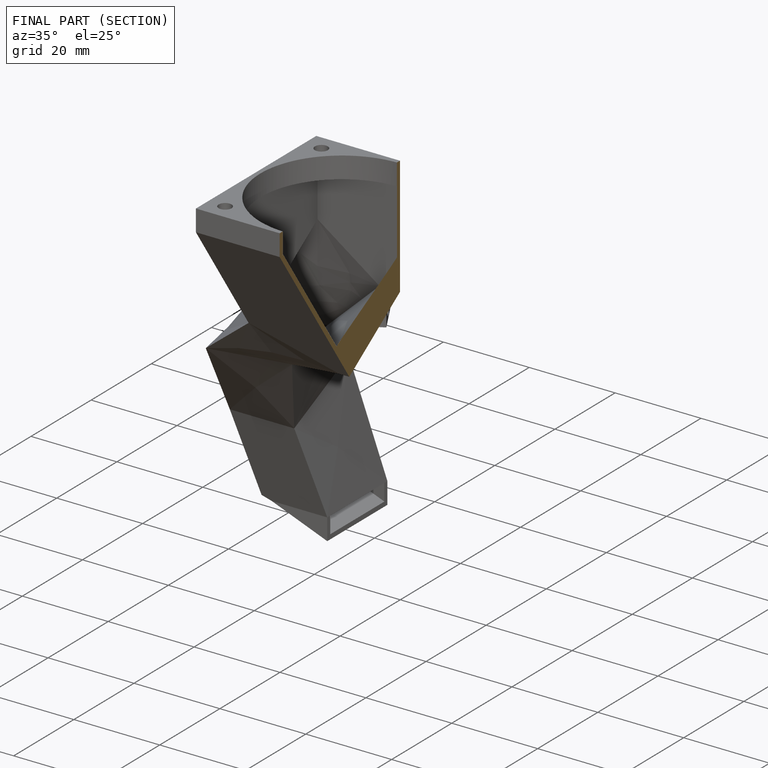
[diagram: finished part — half-section view (interior)]
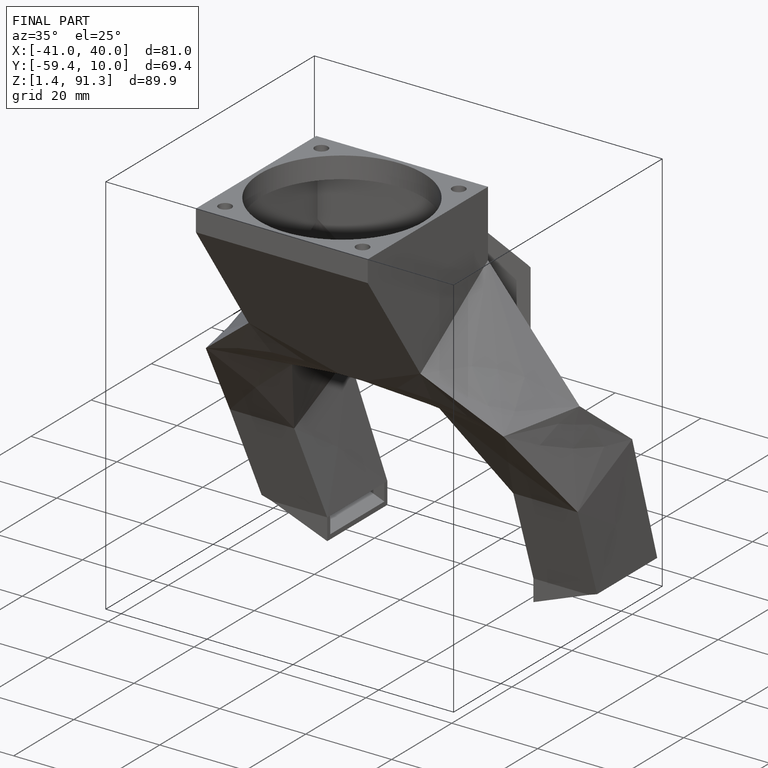
[diagram: finished part — iso view with bounding-box wireframe]
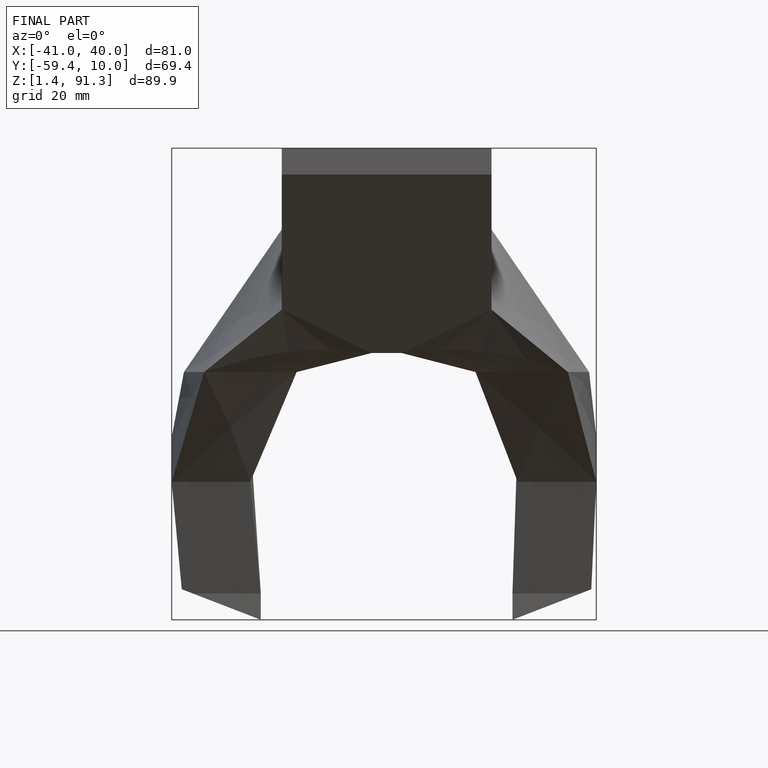
[diagram: finished part — front view with bounding-box wireframe]
